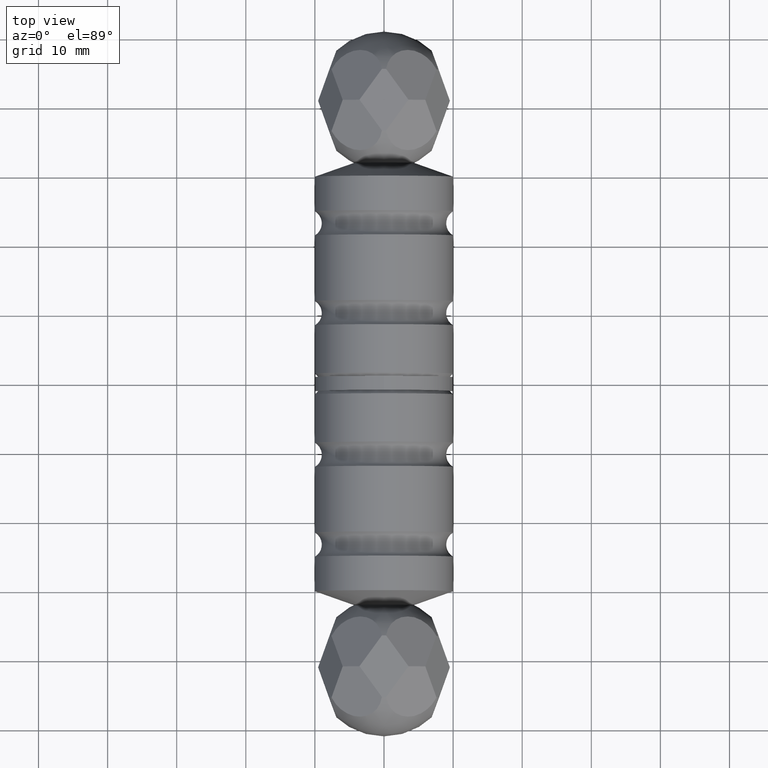
[diagram: clean part render]
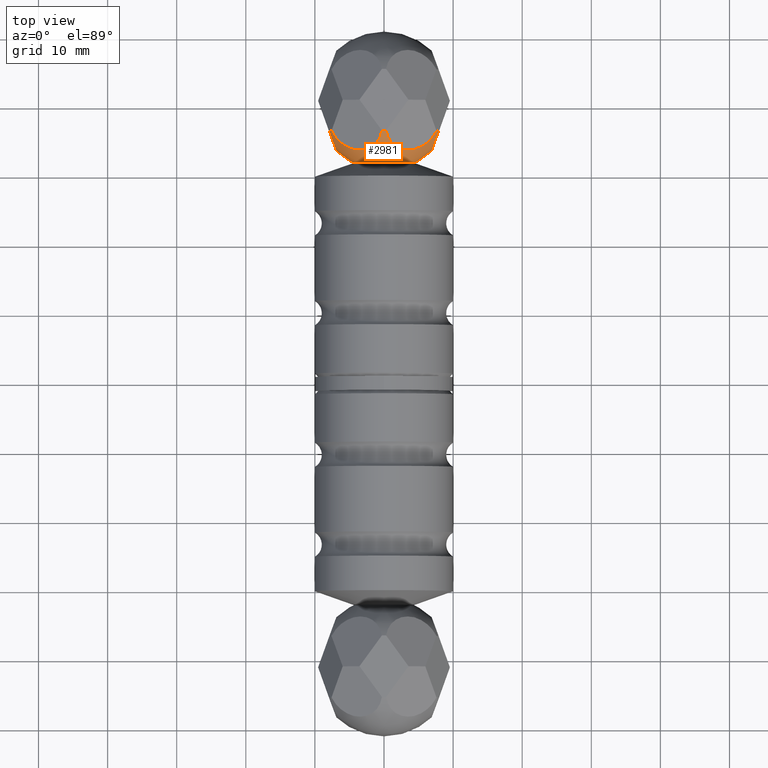
[diagram: same view with one face highlighted and labeled with its STEP entity id]
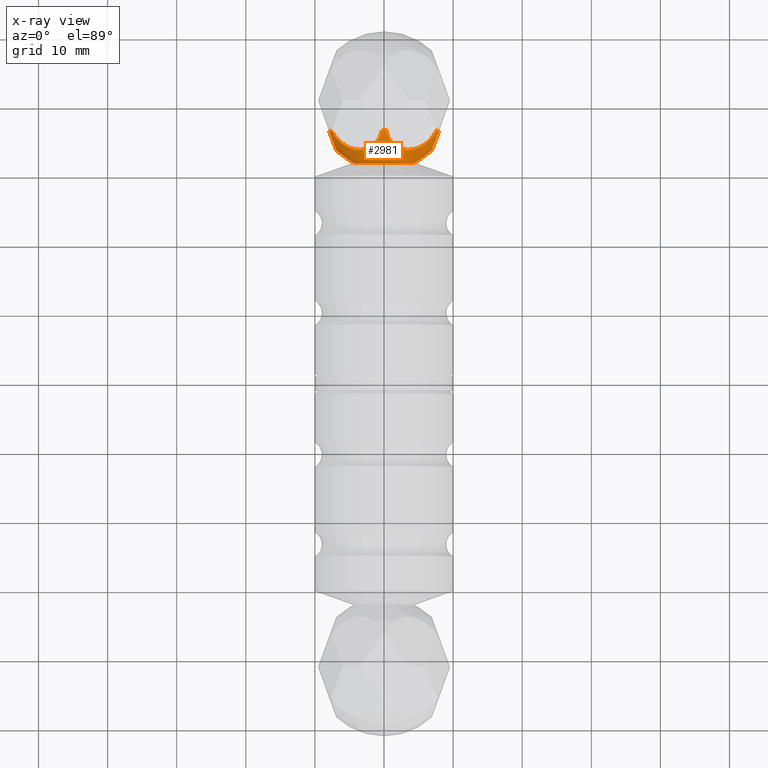
[diagram: x-ray of the same camera — body ghosted, the highlighted face saturated]
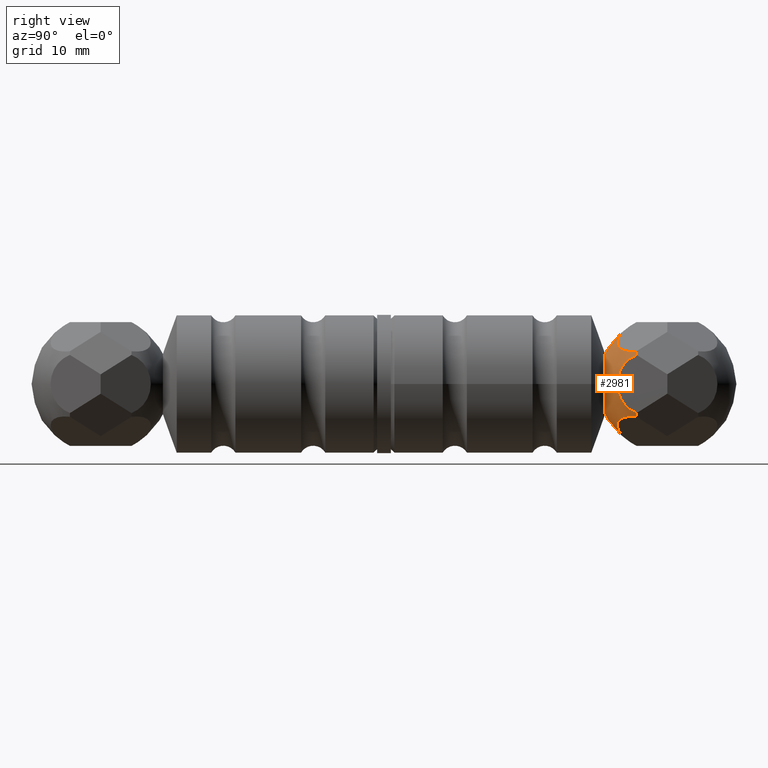
[diagram: same view with one face highlighted and labeled with its STEP entity id]
A machine part, top view. The second image highlights one B-rep face of the part: STEP entity #2981.
The next image is the same camera in x-ray: the body ghosted, the highlighted face saturated — about 0% of this face is hidden behind the body in this view.
A second angle (right view) of the same face is appended — the face is thin or edge-on in the first view.
In plain terms, the highlighted spherical surface has radius 10 mm.
Its self-contained STEP definition (entity closure, byte-faithful):
#53 = DIRECTION ( 'NONE',  ( 0.8660254037844417052, -0.000000000000000000, -0.4999999999999948930 ) ) ;
#94 = CIRCLE ( 'NONE', #341, 4.460661385938191614 ) ;
#341 = AXIS2_PLACEMENT_3D ( 'NONE', #8078, #7219, #1290 ) ;
#473 = DIRECTION ( 'NONE',  ( -1.060262988517024338E-14, -0.000000000000000000, 1.000000000000000000 ) ) ;
#521 = ORIENTED_EDGE ( 'NONE', *, *, #10207, .F. ) ;
#680 = CIRCLE ( 'NONE', #1816, 4.460661385938192502 ) ;
#721 = CARTESIAN_POINT ( 'NONE',  ( -7.904706857588922553, 35.54995421717404014, 4.208646103717867959 ) ) ;
#765 = AXIS2_PLACEMENT_3D ( 'NONE', #3050, #2050, #9052 ) ;
#811 = DIRECTION ( 'NONE',  ( 0.8660254037844345998, -0.000000000000000000, 0.5000000000000072164 ) ) ;
#1103 = DIRECTION ( 'NONE',  ( 1.000000000000000000, 0.000000000000000000, 0.000000000000000000 ) ) ;
#1121 = DIRECTION ( 'NONE',  ( -0.4999999999999947264, 0.000000000000000000, -0.8660254037844415942 ) ) ;
#1173 = DIRECTION ( 'NONE',  ( -0.8660254037844432595, 0.000000000000000000, 0.4999999999999918399 ) ) ;
#1287 = CARTESIAN_POINT ( 'NONE',  ( 0.3075589874363691134, 35.54995421717406145, 8.950000000000011724 ) ) ;
#1290 = DIRECTION ( 'NONE',  ( 1.000000000000000000, 0.000000000000000000, 1.750022018372456197E-14 ) ) ;
#1354 = EDGE_CURVE ( 'NONE', #1718, #4271, #10039, .T. ) ;
#1515 = FACE_OUTER_BOUND ( 'NONE', #9145, .T. ) ;
#1542 = DIRECTION ( 'NONE',  ( 0.8660254037844362651, 0.000000000000000000, 0.5000000000000042188 ) ) ;
#1588 = EDGE_CURVE ( 'NONE', #4771, #7805, #94, .T. ) ;
#1718 = VERTEX_POINT ( 'NONE', #3387 ) ;
#1749 = CARTESIAN_POINT ( 'NONE',  ( 7.597147870152589633, 35.54995421717404014, -4.741353896282040736 ) ) ;
#1816 = AXIS2_PLACEMENT_3D ( 'NONE', #9976, #12025, #1173 ) ;
#1880 = ORIENTED_EDGE ( 'NONE', *, *, #2072, .T. ) ;
#2050 = DIRECTION ( 'NONE',  ( -0.4698463103929635398, 0.3420201433256693790, 0.8137976813493679185 ) ) ;
#2072 = EDGE_CURVE ( 'NONE', #4771, #4537, #6458, .T. ) ;
#2171 = DIRECTION ( 'NONE',  ( -0.8660254037844417052, -0.000000000000000000, 0.4999999999999948930 ) ) ;
#2297 = CIRCLE ( 'NONE', #7115, 4.460661385938184509 ) ;
#2311 = AXIS2_PLACEMENT_3D ( 'NONE', #5338, #4291, #7363 ) ;
#2486 = AXIS2_PLACEMENT_3D ( 'NONE', #9365, #6370, #7419 ) ;
#2569 = EDGE_LOOP ( 'NONE', ( #9671 ) ) ;
#2600 = DIRECTION ( 'NONE',  ( 0.4698463103929579332, 0.3420201433256693790, -0.8137976813493713601 ) ) ;
#2645 = VERTEX_POINT ( 'NONE', #7617 ) ;
#2688 = EDGE_CURVE ( 'NONE', #5342, #10230, #3215, .T. ) ;
#2704 = VERTEX_POINT ( 'NONE', #1287 ) ;
#2798 = CARTESIAN_POINT ( 'NONE',  ( 0.000000000000000000, 31.00000000000000000, 0.000000000000000000 ) ) ;
#2910 = DIRECTION ( 'NONE',  ( 0.000000000000000000, 0.000000000000000000, -1.000000000000000000 ) ) ;
#2981 = ADVANCED_FACE ( 'NONE', ( #9412, #1515 ), #5082, .T. ) ;
#2992 = ORIENTED_EDGE ( 'NONE', *, *, #1354, .T. ) ;
#3050 = CARTESIAN_POINT ( 'NONE',  ( 4.205124478017023826, 36.93891971723525813, -7.283489248076843836 ) ) ;
#3215 = CIRCLE ( 'NONE', #10572, 4.460661385938188950 ) ;
#3306 = VERTEX_POINT ( 'NONE', #9554 ) ;
#3348 = DIRECTION ( 'NONE',  ( 0.9396926207859083169, 0.3420201433256694346, -0.000000000000000000 ) ) ;
#3355 = DIRECTION ( 'NONE',  ( -1.000000000000000000, 0.000000000000000000, -1.050013211023477063E-14 ) ) ;
#3387 = CARTESIAN_POINT ( 'NONE',  ( -0.3075589874364383358, 35.54995421717405435, 8.950000000000004619 ) ) ;
#3580 = AXIS2_PLACEMENT_3D ( 'NONE', #2798, #7663, #2910 ) ;
#3627 = AXIS2_PLACEMENT_3D ( 'NONE', #8983, #9989, #1103 ) ;
#3797 = CIRCLE ( 'NONE', #2311, 4.460661385938192502 ) ;
#3844 = CARTESIAN_POINT ( 'NONE',  ( 7.904706857588922553, 35.54995421717404014, -4.208646103717867959 ) ) ;
#4123 = CARTESIAN_POINT ( 'NONE',  ( 7.904706857588924329, 35.54995421717405435, 4.208646103717872400 ) ) ;
#4209 = AXIS2_PLACEMENT_3D ( 'NONE', #7052, #2171, #1121 ) ;
#4271 = VERTEX_POINT ( 'NONE', #10111 ) ;
#4291 = DIRECTION ( 'NONE',  ( -0.8660254037844310471, -0.000000000000000000, -0.5000000000000132117 ) ) ;
#4358 = AXIS2_PLACEMENT_3D ( 'NONE', #12607, #2600, #1542 ) ;
#4493 = EDGE_CURVE ( 'NONE', #2645, #2645, #8140, .T. ) ;
#4537 = VERTEX_POINT ( 'NONE', #1749 ) ;
#4667 = EDGE_CURVE ( 'NONE', #5342, #4537, #11847, .T. ) ;
#4771 = VERTEX_POINT ( 'NONE', #9073 ) ;
#4884 = VERTEX_POINT ( 'NONE', #7566 ) ;
#5082 = SPHERICAL_SURFACE ( 'NONE', #3627, 10.00000000000000178 ) ;
#5158 = ORIENTED_EDGE ( 'NONE', *, *, #10036, .T. ) ;
#5242 = CARTESIAN_POINT ( 'NONE',  ( 8.410248956033878898, 36.93891971723525813, 0.000000000000000000 ) ) ;
#5288 = CARTESIAN_POINT ( 'NONE',  ( -8.410248956033878898, 36.93891971723525813, 0.000000000000000000 ) ) ;
#5338 = CARTESIAN_POINT ( 'NONE',  ( -7.750927363870658837, 40.00000000000000000, -4.475000000000118661 ) ) ;
#5342 = VERTEX_POINT ( 'NONE', #3844 ) ;
#5894 = CIRCLE ( 'NONE', #2486, 4.460661385938193391 ) ;
#6125 = EDGE_CURVE ( 'NONE', #12349, #4884, #8433, .T. ) ;
#6128 = DIRECTION ( 'NONE',  ( 0.3420201433256696566, 0.9396926207859082059, 0.000000000000000000 ) ) ;
#6171 = ORIENTED_EDGE ( 'NONE', *, *, #7381, .F. ) ;
#6370 = DIRECTION ( 'NONE',  ( -0.4698463103929521600, 0.3420201433256693790, -0.8137976813493744688 ) ) ;
#6458 = CIRCLE ( 'NONE', #765, 4.460661385938194279 ) ;
#6900 = EDGE_CURVE ( 'NONE', #3306, #7805, #680, .T. ) ;
#6989 = VERTEX_POINT ( 'NONE', #12070 ) ;
#7052 = CARTESIAN_POINT ( 'NONE',  ( -7.750927363870755649, 40.00000000000000000, 4.474999999999955236 ) ) ;
#7068 = ORIENTED_EDGE ( 'NONE', *, *, #12815, .F. ) ;
#7115 = AXIS2_PLACEMENT_3D ( 'NONE', #9577, #811, #8582 ) ;
#7218 = DIRECTION ( 'NONE',  ( -0.9396926207859083169, 0.3420201433256694346, -0.000000000000000000 ) ) ;
#7219 = DIRECTION ( 'NONE',  ( 1.765254609153998899E-14, -0.000000000000000000, -1.000000000000000000 ) ) ;
#7363 = DIRECTION ( 'NONE',  ( 0.5000000000000132117, 3.111150254884366039E-15, -0.8660254037844309360 ) ) ;
#7381 = EDGE_CURVE ( 'NONE', #3306, #4884, #3797, .T. ) ;
#7419 = DIRECTION ( 'NONE',  ( 0.8660254037844399289, 0.000000000000000000, -0.4999999999999978906 ) ) ;
#7566 = CARTESIAN_POINT ( 'NONE',  ( -7.904706857588919000, 35.54995421717405435, -4.208646103717880393 ) ) ;
#7617 = CARTESIAN_POINT ( 'NONE',  ( 0.000000000000000000, 31.00000000000000000, -4.358898943540679305 ) ) ;
#7663 = DIRECTION ( 'NONE',  ( -0.000000000000000000, -1.000000000000000000, -0.000000000000000000 ) ) ;
#7805 = VERTEX_POINT ( 'NONE', #10324 ) ;
#8016 = AXIS2_PLACEMENT_3D ( 'NONE', #9311, #473, #3355 ) ;
#8078 = CARTESIAN_POINT ( 'NONE',  ( 1.579902875192829217E-13, 40.00000000000000000, -8.950000000000001066 ) ) ;
#8140 = CIRCLE ( 'NONE', #3580, 4.358898943540679305 ) ;
#8375 = ORIENTED_EDGE ( 'NONE', *, *, #6125, .T. ) ;
#8402 = EDGE_CURVE ( 'NONE', #6989, #10230, #2297, .T. ) ;
#8433 = CIRCLE ( 'NONE', #10997, 4.460661385938188950 ) ;
#8508 = CIRCLE ( 'NONE', #8016, 4.460661385938177403 ) ;
#8582 = DIRECTION ( 'NONE',  ( -0.5000000000000071054, 0.000000000000000000, 0.8660254037844345998 ) ) ;
#8961 = ORIENTED_EDGE ( 'NONE', *, *, #6900, .T. ) ;
#8983 = CARTESIAN_POINT ( 'NONE',  ( 0.000000000000000000, 40.00000000000000000, 0.000000000000000000 ) ) ;
#8987 = ORIENTED_EDGE ( 'NONE', *, *, #8402, .F. ) ;
#9052 = DIRECTION ( 'NONE',  ( -0.8660254037844327124, 0.000000000000000000, -0.5000000000000101030 ) ) ;
#9073 = CARTESIAN_POINT ( 'NONE',  ( 0.3075589874364874632, 35.54995421717404014, -8.949999999999993960 ) ) ;
#9145 = EDGE_LOOP ( 'NONE', ( #8987, #5158, #7068, #2992, #521, #8375, #6171, #8961, #11356, #1880, #10250, #12551 ) ) ;
#9209 = DIRECTION ( 'NONE',  ( 0.3420201433256696566, -0.9396926207859082059, 0.000000000000000000 ) ) ;
#9311 = CARTESIAN_POINT ( 'NONE',  ( -9.489353747227375803E-14, 40.00000000000000000, 8.950000000000008171 ) ) ;
#9365 = CARTESIAN_POINT ( 'NONE',  ( 4.205124478016922573, 36.93891971723525813, 7.283489248076901568 ) ) ;
#9412 = FACE_OUTER_BOUND ( 'NONE', #2569, .T. ) ;
#9554 = CARTESIAN_POINT ( 'NONE',  ( -7.597147870152484828, 35.54995421717404014, -4.741353896282205049 ) ) ;
#9577 = CARTESIAN_POINT ( 'NONE',  ( 7.750927363870692588, 40.00000000000000000, 4.475000000000065370 ) ) ;
#9671 = ORIENTED_EDGE ( 'NONE', *, *, #4493, .F. ) ;
#9917 = CARTESIAN_POINT ( 'NONE',  ( 7.750927363870755649, 40.00000000000000000, -4.474999999999955236 ) ) ;
#9976 = CARTESIAN_POINT ( 'NONE',  ( -4.205124478016871947, 36.93891971723525813, -7.283489248076932654 ) ) ;
#9989 = DIRECTION ( 'NONE',  ( 0.000000000000000000, 0.000000000000000000, 1.000000000000000000 ) ) ;
#10036 = EDGE_CURVE ( 'NONE', #6989, #2704, #5894, .T. ) ;
#10039 = CIRCLE ( 'NONE', #4358, 4.460661385938184509 ) ;
#10111 = CARTESIAN_POINT ( 'NONE',  ( -7.597147870152555882, 35.54995421717404724, 4.741353896282101132 ) ) ;
#10207 = EDGE_CURVE ( 'NONE', #12349, #4271, #10537, .T. ) ;
#10230 = VERTEX_POINT ( 'NONE', #4123 ) ;
#10250 = ORIENTED_EDGE ( 'NONE', *, *, #4667, .F. ) ;
#10324 = CARTESIAN_POINT ( 'NONE',  ( -0.3075589874362979481, 35.54995421717404724, -8.950000000000008171 ) ) ;
#10537 = CIRCLE ( 'NONE', #4209, 4.460661385938187173 ) ;
#10572 = AXIS2_PLACEMENT_3D ( 'NONE', #5242, #7218, #6128 ) ;
#10997 = AXIS2_PLACEMENT_3D ( 'NONE', #5288, #3348, #9209 ) ;
#11356 = ORIENTED_EDGE ( 'NONE', *, *, #1588, .F. ) ;
#11526 = AXIS2_PLACEMENT_3D ( 'NONE', #9917, #53, #11892 ) ;
#11847 = CIRCLE ( 'NONE', #11526, 4.460661385938187173 ) ;
#11892 = DIRECTION ( 'NONE',  ( 0.4999999999999947264, 0.000000000000000000, 0.8660254037844415942 ) ) ;
#12025 = DIRECTION ( 'NONE',  ( 0.4698463103929464979, 0.3420201433256693790, 0.8137976813493777994 ) ) ;
#12070 = CARTESIAN_POINT ( 'NONE',  ( 7.597147870152522131, 35.54995421717404724, 4.741353896282149982 ) ) ;
#12349 = VERTEX_POINT ( 'NONE', #721 ) ;
#12551 = ORIENTED_EDGE ( 'NONE', *, *, #2688, .T. ) ;
#12607 = CARTESIAN_POINT ( 'NONE',  ( -4.205124478016974976, 36.93891971723525813, 7.283489248076876699 ) ) ;
#12815 = EDGE_CURVE ( 'NONE', #1718, #2704, #8508, .T. ) ;